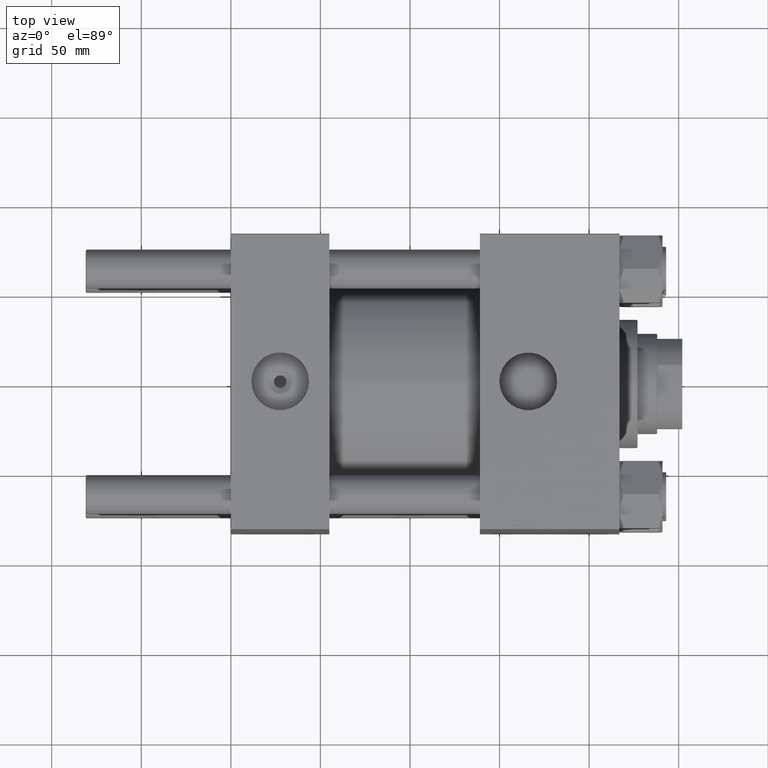
[diagram: clean part render]
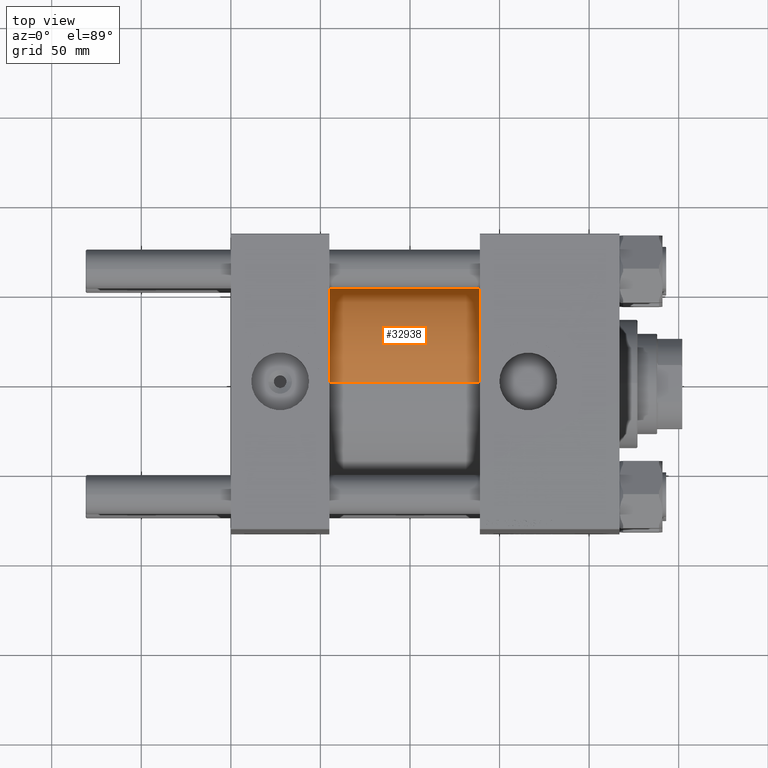
[diagram: same view with one face highlighted and labeled with its STEP entity id]
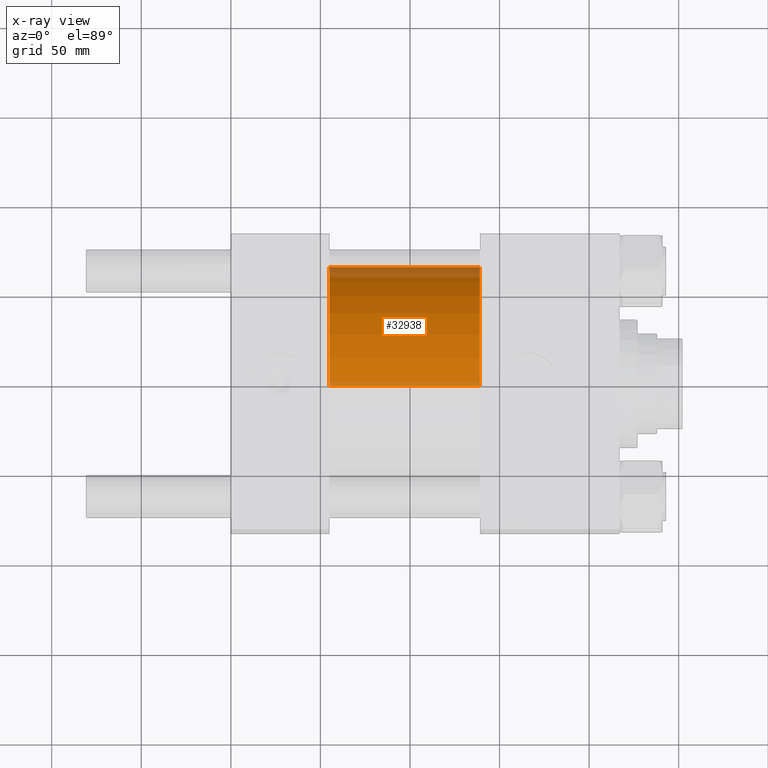
[diagram: x-ray of the same camera — body ghosted, the highlighted face saturated]
A machine part, top view. The second image highlights one B-rep face of the part: STEP entity #32938.
The next image is the same camera in x-ray: the body ghosted, the highlighted face saturated — about 12% of this face is hidden behind the body in this view.
In plain terms, the highlighted cylindrical surface (partial cylindrical patch) has radius 65.5 mm, axis along (-1, -0, -0).
Its self-contained STEP definition (entity closure, byte-faithful):
#1679 = CARTESIAN_POINT ( 'NONE',  ( 139.0000000000000000, 0.000000000000000000, 65.50000000000001421 ) ) ;
#3965 = ORIENTED_EDGE ( 'NONE', *, *, #37581, .T. ) ;
#4255 = VECTOR ( 'NONE', #44164, 1000.000000000000000 ) ;
#5959 = DIRECTION ( 'NONE',  ( -1.000000000000000000, -0.000000000000000000, -0.000000000000000000 ) ) ;
#6833 = DIRECTION ( 'NONE',  ( 0.000000000000000000, 0.000000000000000000, 1.000000000000000000 ) ) ;
#9006 = VECTOR ( 'NONE', #19744, 1000.000000000000000 ) ;
#12121 = AXIS2_PLACEMENT_3D ( 'NONE', #20445, #5959, #17140 ) ;
#12129 = CARTESIAN_POINT ( 'NONE',  ( 139.0000000000000000, 8.021436534415164826E-15, -65.50000000000001421 ) ) ;
#12825 = EDGE_CURVE ( 'NONE', #34326, #33567, #16933, .T. ) ;
#13084 = CYLINDRICAL_SURFACE ( 'NONE', #12121, 65.50000000000001421 ) ;
#13238 = VERTEX_POINT ( 'NONE', #35390 ) ;
#13962 = CARTESIAN_POINT ( 'NONE',  ( 54.99999999999999289, 0.000000000000000000, 0.000000000000000000 ) ) ;
#15444 = CIRCLE ( 'NONE', #47116, 65.50000000000001421 ) ;
#16933 = LINE ( 'NONE', #1679, #4255 ) ;
#17140 = DIRECTION ( 'NONE',  ( 0.000000000000000000, 0.000000000000000000, 1.000000000000000000 ) ) ;
#18355 = DIRECTION ( 'NONE',  ( 0.000000000000000000, 0.000000000000000000, -1.000000000000000000 ) ) ;
#19744 = DIRECTION ( 'NONE',  ( -1.000000000000000000, -0.000000000000000000, -0.000000000000000000 ) ) ;
#20058 = ORIENTED_EDGE ( 'NONE', *, *, #35162, .F. ) ;
#20209 = EDGE_LOOP ( 'NONE', ( #20058, #3965, #45271, #36832 ) ) ;
#20445 = CARTESIAN_POINT ( 'NONE',  ( 139.0000000000000000, 0.000000000000000000, 0.000000000000000000 ) ) ;
#22777 = CARTESIAN_POINT ( 'NONE',  ( 54.99999999999999289, 8.021436534415164826E-15, -65.50000000000001421 ) ) ;
#23313 = LINE ( 'NONE', #12129, #9006 ) ;
#23942 = AXIS2_PLACEMENT_3D ( 'NONE', #13962, #26137, #6833 ) ;
#23977 = CIRCLE ( 'NONE', #23942, 65.50000000000001421 ) ;
#24009 = EDGE_CURVE ( 'NONE', #24973, #33567, #23977, .T. ) ;
#24973 = VERTEX_POINT ( 'NONE', #22777 ) ;
#26137 = DIRECTION ( 'NONE',  ( 1.000000000000000000, -0.000000000000000000, -0.000000000000000000 ) ) ;
#30041 = DIRECTION ( 'NONE',  ( 1.000000000000000000, 0.000000000000000000, 0.000000000000000000 ) ) ;
#32938 = ADVANCED_FACE ( 'NONE', ( #40798 ), #13084, .T. ) ;
#33567 = VERTEX_POINT ( 'NONE', #45652 ) ;
#34326 = VERTEX_POINT ( 'NONE', #40885 ) ;
#35162 = EDGE_CURVE ( 'NONE', #13238, #34326, #15444, .T. ) ;
#35390 = CARTESIAN_POINT ( 'NONE',  ( 139.0000000000000000, 8.021436534415164826E-15, -65.50000000000001421 ) ) ;
#36832 = ORIENTED_EDGE ( 'NONE', *, *, #12825, .F. ) ;
#37581 = EDGE_CURVE ( 'NONE', #13238, #24973, #23313, .T. ) ;
#40798 = FACE_OUTER_BOUND ( 'NONE', #20209, .T. ) ;
#40885 = CARTESIAN_POINT ( 'NONE',  ( 139.0000000000000000, 0.000000000000000000, 65.50000000000001421 ) ) ;
#44164 = DIRECTION ( 'NONE',  ( -1.000000000000000000, -0.000000000000000000, -0.000000000000000000 ) ) ;
#45271 = ORIENTED_EDGE ( 'NONE', *, *, #24009, .T. ) ;
#45652 = CARTESIAN_POINT ( 'NONE',  ( 54.99999999999999289, 0.000000000000000000, 65.50000000000001421 ) ) ;
#46075 = CARTESIAN_POINT ( 'NONE',  ( 139.0000000000000000, 0.000000000000000000, 0.000000000000000000 ) ) ;
#47116 = AXIS2_PLACEMENT_3D ( 'NONE', #46075, #30041, #18355 ) ;